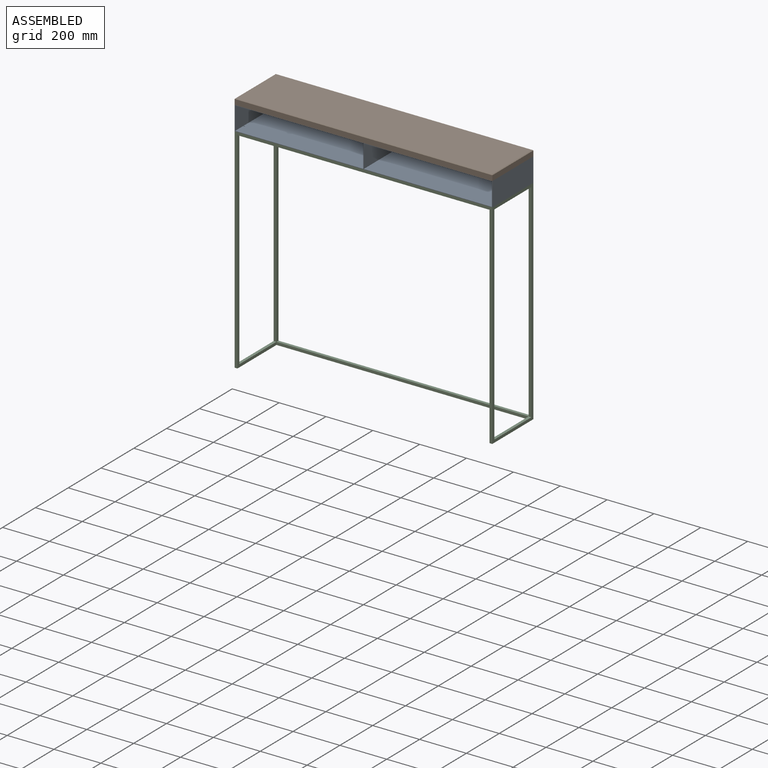
[diagram: assembled view]
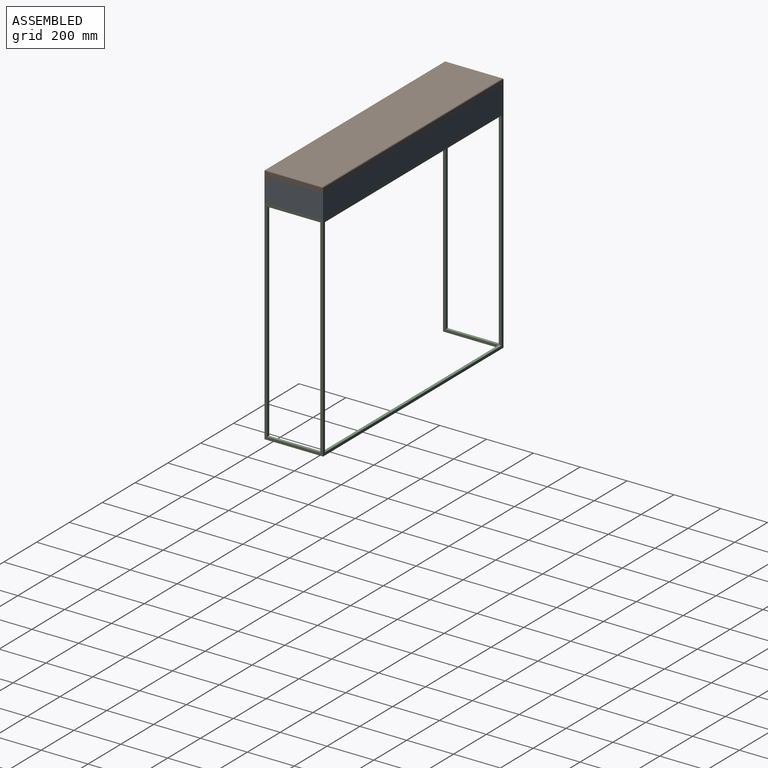
[diagram: assembled view, second angle]
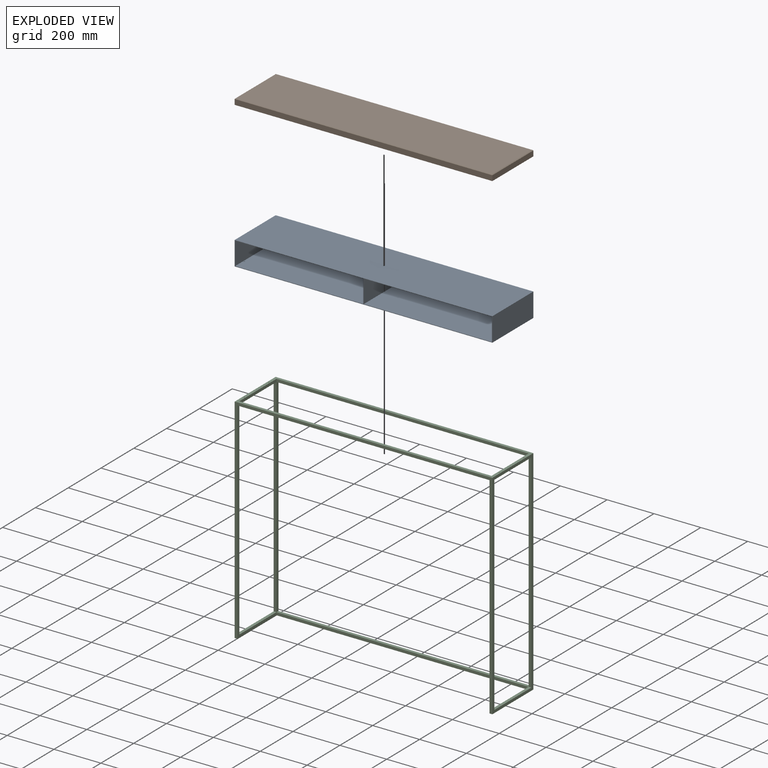
[diagram: exploded view]
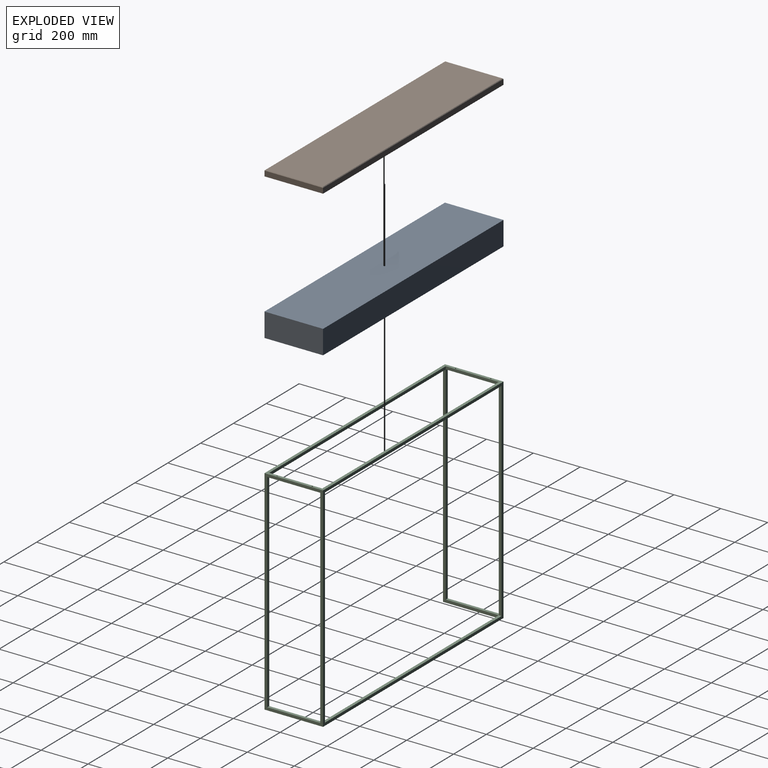
[diagram: exploded view, second angle]
ASSEMBLY  parts=3 mates=2
PART A: 20 faces, bbox 1100x250x102 mm
  f0: plane 547x248mm, normal (0,0,1), area 135616.7mm2, adj f3,f5,f7,f14,f15,f18
  f1: plane 547x98mm, normal (0,-1,0), area 53606mm2, adj f2,f4,f6,f19
  f2: plane 547x248mm, normal (0,0,-1), area 135656mm2, adj f1,f4,f7,f19
  f3: plane 248x98mm, normal (1,0,0), area 24304mm2, adj f0,f5,f7,f13
  f4: plane 248x98mm, normal (-1,0,0), area 24304mm2, adj f1,f2,f6,f7
  f5: plane 547x98mm, normal (0,-1,0), area 53606mm2, adj f0,f3,f13,f18
  f6: plane 547x248mm, normal (0,0,1), area 135616.7mm2, adj f1,f4,f7,f16,f17,f19
  f7: plane 1100x102mm, normal (0,-1,0), area 4988mm2, adj f0,f2,f3,f4,f6,f8,f10,f11
  f8: plane 250x102mm, normal (1,0,0), area 25500mm2, adj f7,f9,f11,f12
  f9: plane 1100x102mm, normal (0,1,0), area 112200mm2, adj f8,f10,f11,f12
  f10: plane 250x102mm, normal (-1,0,0), area 25500mm2, adj f7,f9,f11,f12
  f11: plane 1100x250mm, normal (0,0,-1), area 274921.5mm2, adj f7,f8,f9,f10,f14,f15,f16,f17
  f12: plane 1100x250mm, normal (0,0,1), area 275000mm2, adj f7,f8,f9,f10
  f13: plane 547x248mm, normal (0,0,-1), area 135656mm2, adj f3,f5,f7,f18
  f14: cylinder r=2.5mm len=5mm, axis (0,0,-1), area 31.4mm2, adj f0,f11
  f15: cylinder r=2.5mm len=5mm, axis (0,0,-1), area 31.4mm2, adj f0,f11
  f16: cylinder r=2.5mm len=5mm, axis (0,0,-1), area 31.4mm2, adj f6,f11
  f17: cylinder r=2.5mm len=5mm, axis (0,0,-1), area 31.4mm2, adj f6,f11
  f18: plane 248x98mm, normal (-1,0,0), area 24304mm2, adj f0,f5,f7,f13
  f19: plane 248x98mm, normal (1,0,0), area 24304mm2, adj f1,f2,f6,f7
PART B: 10 faces, bbox 1100x250x25 mm
  f0: plane 250x22.5mm, normal (1,0,0), area 5625mm2, adj f1,f3,f5,f6
  f1: plane 1100x22.5mm, normal (0,1,0), area 24750mm2, adj f0,f2,f5,f7
  f2: plane 250x22.5mm, normal (-1,0,0), area 5625mm2, adj f1,f3,f5,f9
  f3: plane 1100x22.5mm, normal (0,-1,0), area 24750mm2, adj f0,f2,f5,f8
  f4: plane 1095x245mm, normal (0,0,1), area 268275mm2, adj f6,f7,f8,f9
  f5: plane 1100x250mm, normal (0,0,-1), area 275000mm2, adj f0,f1,f2,f3
  f6: plane 250x2.5mm, normal (0.71,0,0.71), area 875mm2, adj f0,f4,f7,f8
  f7: plane 1100x2.5mm, normal (0,0.71,0.71), area 3880.2mm2, adj f1,f4,f6,f9
  f8: plane 1100x2.5mm, normal (0,-0.71,0.71), area 3880.2mm2, adj f3,f4,f6,f9
  f9: plane 250x2.5mm, normal (-0.71,0,0.71), area 875mm2, adj f2,f4,f7,f8
PART C: 30 faces, bbox 1100x250x912 mm
  f0: plane 888x12mm, normal (0,-1,0), area 10656mm2, adj f4,f7,f11,f24
  f1: plane 1076x12mm, normal (0,1,0), area 12912mm2, adj f15,f20,f23,f25
  f2: plane 1076x12mm, normal (0,-1,0), area 12912mm2, adj f15,f21,f23,f25
  f3: plane 888x12mm, normal (0,1,0), area 10656mm2, adj f13,f17,f18,f22
  f4: plane 888x12mm, normal (-1,0,0), area 10656mm2, adj f0,f9,f12,f21
  f5: plane 888x12mm, normal (1,0,0), area 10656mm2, adj f8,f9,f12,f21
  f6: plane 900x238mm, normal (-1,0,0), area 13512mm2, adj f7,f10,f14,f16,f19,f20
  f7: plane 226x12mm, normal (0,0,1), area 2712mm2, adj f0,f6,f11,f19
  f8: plane 888x12mm, normal (0,-1,0), area 10656mm2, adj f5,f13,f17,f22
  f9: plane 1076x12mm, normal (0,0,1), area 12912mm2, adj f4,f5,f10,f12
  f10: plane 1076x12mm, normal (0,-1,0), area 12912mm2, adj f6,f9,f14,f18
  f11: plane 912x250mm, normal (1,0,0), area 27312mm2, adj f0,f7,f12,f14,f15,f16,f19,f24
  f12: plane 1100x912mm, normal (0,1,0), area 47712mm2, adj f4,f5,f9,f11,f13,f14,f15,f21
  f13: plane 912x250mm, normal (-1,0,0), area 27312mm2, adj f3,f8,f12,f14,f15,f16,f17,f22
  f14: plane 1100x250mm, normal (0,0,-1), area 18912mm2, adj f6,f10,f11,f12,f13,f16,f18
  f15: plane 1100x250mm, normal (0,0,1), area 31745.5mm2, adj f1,f2,f11,f12,f13,f16,f23,f25
  f16: plane 1100x912mm, normal (0,-1,0), area 34800mm2, adj f6,f11,f13,f14,f15,f18,f20
  f17: plane 226x12mm, normal (0,0,1), area 2712mm2, adj f3,f8,f13,f18
  f18: plane 900x238mm, normal (1,0,0), area 13512mm2, adj f3,f10,f14,f16,f17,f20
  f19: plane 888x12mm, normal (0,1,0), area 10656mm2, adj f6,f7,f11,f24
  f20: plane 1076x12mm, normal (0,0,-1), area 12912mm2, adj f1,f6,f16,f18
  f21: plane 1076x12mm, normal (0,0,-1), area 12912mm2, adj f2,f4,f5,f12
  f22: plane 226x12mm, normal (0,0,-1), area 2672.7mm2, adj f3,f8,f13,f23,f28,f29
  f23: plane 226x12mm, normal (1,0,0), area 2712mm2, adj f1,f2,f15,f22
  f24: plane 226x12mm, normal (0,0,-1), area 2672.7mm2, adj f0,f11,f19,f25,f26,f27
  f25: plane 226x12mm, normal (-1,0,0), area 2712mm2, adj f1,f2,f15,f24
  f26: cylinder r=2.5mm len=12mm, axis (0,0,1), area 188.5mm2, adj f15,f24
  f27: cylinder r=2.5mm len=12mm, axis (0,0,1), area 188.5mm2, adj f15,f24
  f28: cylinder r=2.5mm len=12mm, axis (0,0,1), area 188.5mm2, adj f15,f22
  f29: cylinder r=2.5mm len=12mm, axis (0,0,1), area 188.5mm2, adj f15,f22
PLACE A t=(167.79,600.65,475.13)mm
PLACE B t=(167.79,600.65,577.13)mm
PLACE C rot(axis=(-1,0,0),0deg) t=(167.79,719.65,-436.87)mm
MATE revolute B.f5 <-> A.f12  axis (0,0,-1) through (-382.21,475.65,577.13)mm
MATE revolute C.f29 <-> A.f14  axis (0,0,1) through (-376.21,525.65,475.13)mm
